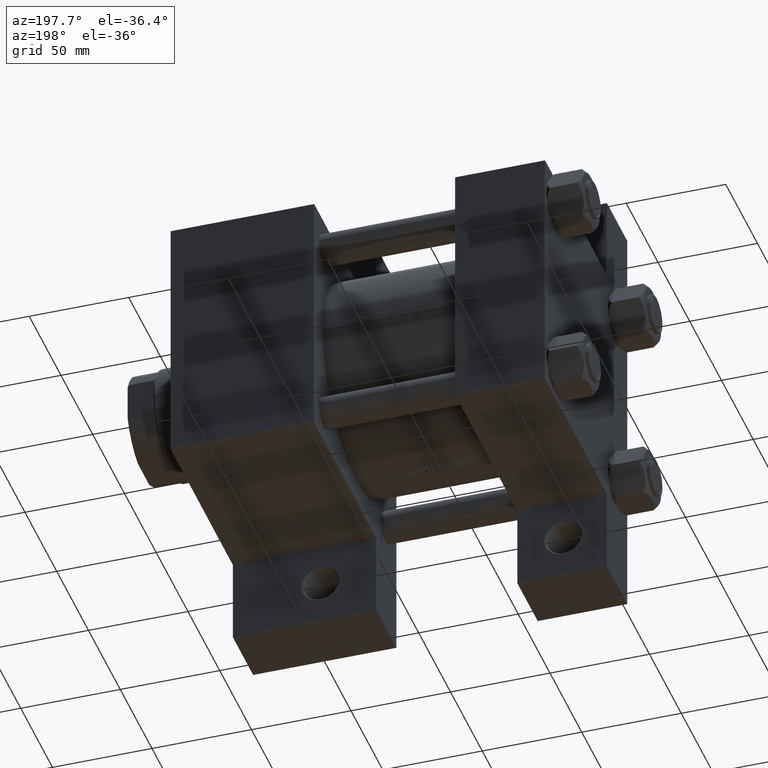
[diagram: clean part render]
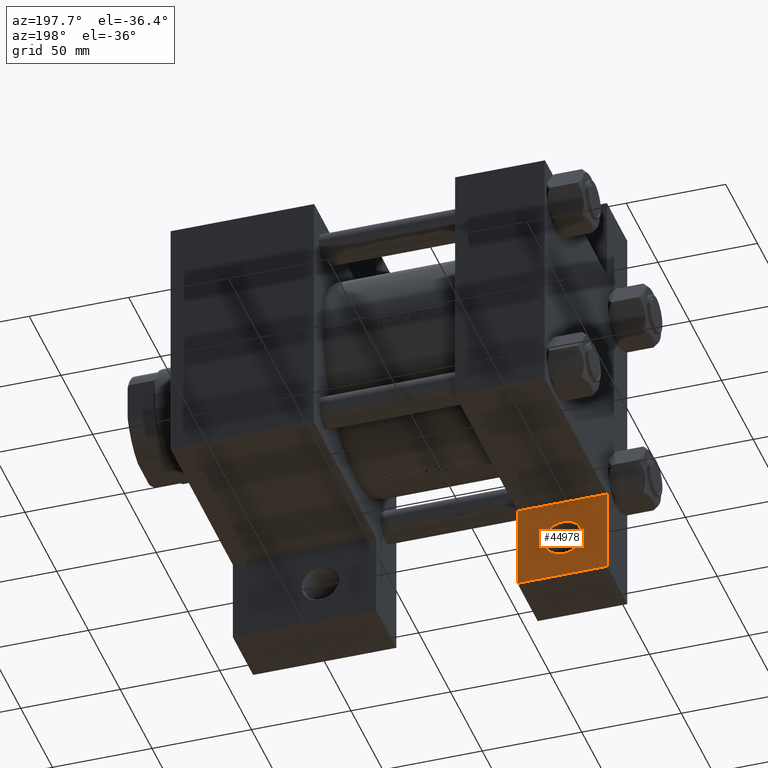
[diagram: same view with one face highlighted and labeled with its STEP entity id]
A machine part, auxiliary view. The second image highlights one B-rep face of the part: STEP entity #44978.
In plain terms, the highlighted planar face has unit normal (0, -1, 0).
Its self-contained STEP definition (entity closure, byte-faithful):
#28 = ORIENTED_EDGE ( 'NONE', *, *, #24935, .T. ) ;
#510 = DIRECTION ( 'NONE',  ( -1.000000000000000000, 0.000000000000000000, 0.000000000000000000 ) ) ;
#514 = DIRECTION ( 'NONE',  ( 3.227392513445223797E-16, 1.000000000000000000, 0.000000000000000000 ) ) ;
#3133 = CARTESIAN_POINT ( 'NONE',  ( 2.598273009909439483E-14, 108.0000000000000284, -33.00000000000000000 ) ) ;
#3148 = EDGE_CURVE ( 'NONE', #46793, #15785, #18932, .T. ) ;
#3922 = CARTESIAN_POINT ( 'NONE',  ( 45.00000000000002842, 108.0000000000000426, -33.00000000000000000 ) ) ;
#4152 = CARTESIAN_POINT ( 'NONE',  ( 22.00000000000000000, 86.00000000000000000, -33.00000000000000000 ) ) ;
#4223 = ORIENTED_EDGE ( 'NONE', *, *, #15554, .T. ) ;
#4487 = VECTOR ( 'NONE', #514, 1000.000000000000000 ) ;
#5527 = AXIS2_PLACEMENT_3D ( 'NONE', #4152, #33810, #510 ) ;
#6231 = CARTESIAN_POINT ( 'NONE',  ( 31.49950000000004735, 86.00000000000000000, -33.00000000000000000 ) ) ;
#6273 = CIRCLE ( 'NONE', #5527, 9.499500000000049127 ) ;
#7235 = LINE ( 'NONE', #3133, #37066 ) ;
#9922 = DIRECTION ( 'NONE',  ( 1.000000000000000000, 0.000000000000000000, 0.000000000000000000 ) ) ;
#9956 = DIRECTION ( 'NONE',  ( -1.000000000000000000, 0.000000000000000000, -0.000000000000000000 ) ) ;
#11512 = EDGE_CURVE ( 'NONE', #20523, #29754, #31770, .T. ) ;
#12196 = ORIENTED_EDGE ( 'NONE', *, *, #44560, .T. ) ;
#12374 = ORIENTED_EDGE ( 'NONE', *, *, #3148, .T. ) ;
#12805 = DIRECTION ( 'NONE',  ( 0.000000000000000000, 0.000000000000000000, -1.000000000000000000 ) ) ;
#15554 = EDGE_CURVE ( 'NONE', #29754, #20523, #6273, .T. ) ;
#15785 = VERTEX_POINT ( 'NONE', #24254 ) ;
#17374 = CARTESIAN_POINT ( 'NONE',  ( 45.00000000000001421, 65.00000000000004263, -33.00000000000000000 ) ) ;
#17415 = CARTESIAN_POINT ( 'NONE',  ( 2.598273009909439483E-14, 108.0000000000000284, -33.00000000000000000 ) ) ;
#18231 = VERTEX_POINT ( 'NONE', #17415 ) ;
#18932 = LINE ( 'NONE', #3922, #4487 ) ;
#20466 = LINE ( 'NONE', #27535, #40757 ) ;
#20523 = VERTEX_POINT ( 'NONE', #43003 ) ;
#20930 = EDGE_LOOP ( 'NONE', ( #39777, #28, #12374, #12196 ) ) ;
#21047 = CARTESIAN_POINT ( 'NONE',  ( 0.000000000000000000, 65.00000000000000000, -33.00000000000000000 ) ) ;
#24065 = CARTESIAN_POINT ( 'NONE',  ( 0.000000000000000000, 0.000000000000000000, -33.00000000000000000 ) ) ;
#24254 = CARTESIAN_POINT ( 'NONE',  ( 45.00000000000002842, 108.0000000000000284, -33.00000000000000000 ) ) ;
#24935 = EDGE_CURVE ( 'NONE', #33309, #46793, #32087, .T. ) ;
#27492 = FACE_BOUND ( 'NONE', #32155, .T. ) ;
#27535 = CARTESIAN_POINT ( 'NONE',  ( 2.598273009909439798E-14, 108.0000000000000426, -33.00000000000000000 ) ) ;
#28458 = DIRECTION ( 'NONE',  ( 0.000000000000000000, 0.000000000000000000, -1.000000000000000000 ) ) ;
#29754 = VERTEX_POINT ( 'NONE', #6231 ) ;
#31770 = CIRCLE ( 'NONE', #44250, 9.499500000000049127 ) ;
#31943 = VECTOR ( 'NONE', #9922, 1000.000000000000000 ) ;
#32087 = LINE ( 'NONE', #46919, #31943 ) ;
#32155 = EDGE_LOOP ( 'NONE', ( #4223, #43276 ) ) ;
#32797 = DIRECTION ( 'NONE',  ( -1.000000000000000000, 0.000000000000000000, 0.000000000000000000 ) ) ;
#33309 = VERTEX_POINT ( 'NONE', #21047 ) ;
#33810 = DIRECTION ( 'NONE',  ( 0.000000000000000000, 0.000000000000000000, -1.000000000000000000 ) ) ;
#36936 = EDGE_CURVE ( 'NONE', #18231, #33309, #20466, .T. ) ;
#37066 = VECTOR ( 'NONE', #32797, 1000.000000000000000 ) ;
#38869 = DIRECTION ( 'NONE',  ( -1.000000000000000000, 0.000000000000000000, 0.000000000000000000 ) ) ;
#38990 = DIRECTION ( 'NONE',  ( -2.102829850353463349E-16, -1.000000000000000000, 0.000000000000000000 ) ) ;
#39777 = ORIENTED_EDGE ( 'NONE', *, *, #36936, .T. ) ;
#40757 = VECTOR ( 'NONE', #38990, 1000.000000000000000 ) ;
#42037 = CARTESIAN_POINT ( 'NONE',  ( 22.00000000000000000, 86.00000000000000000, -33.00000000000000000 ) ) ;
#42366 = FACE_OUTER_BOUND ( 'NONE', #20930, .T. ) ;
#42603 = PLANE ( 'NONE',  #44884 ) ;
#43003 = CARTESIAN_POINT ( 'NONE',  ( 12.50049999999994910, 86.00000000000000000, -33.00000000000000000 ) ) ;
#43276 = ORIENTED_EDGE ( 'NONE', *, *, #11512, .T. ) ;
#44250 = AXIS2_PLACEMENT_3D ( 'NONE', #42037, #12805, #38869 ) ;
#44560 = EDGE_CURVE ( 'NONE', #15785, #18231, #7235, .T. ) ;
#44884 = AXIS2_PLACEMENT_3D ( 'NONE', #24065, #28458, #9956 ) ;
#44978 = ADVANCED_FACE ( 'NONE', ( #27492, #42366 ), #42603, .F. ) ;
#46793 = VERTEX_POINT ( 'NONE', #17374 ) ;
#46919 = CARTESIAN_POINT ( 'NONE',  ( 1.694056174257450573E-14, 65.00000000000004263, -33.00000000000000000 ) ) ;